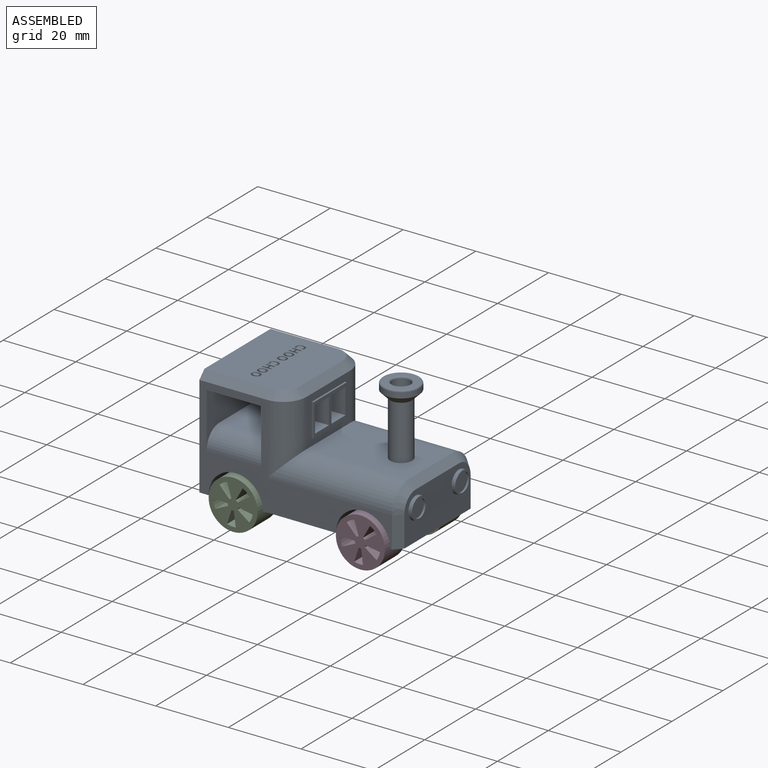
[diagram: assembled view]
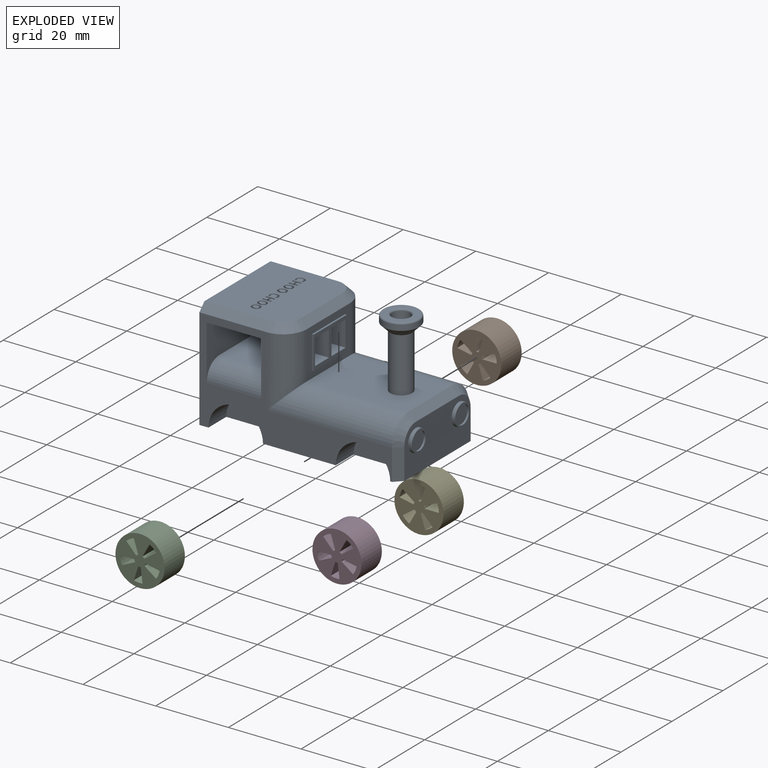
[diagram: exploded view]
GUIDED TOUR — MATED ASSEMBLY (Onshape document 162d488195452871875fd7fb, AutoMate assembly 162d488195452871875fd7fb_f5faa73a14c9afc2af14f6df_5c925709f93b5eba83035d90_default)

This assembly has 5 components, labeled P0..P4 below (a component is one placed occurrence of a part; the same part can appear more than once), held together by 4 mates. A mate is a constraint between two components; its type names the relative motion it leaves free:
  FASTENED — locks the two components together rigidly (no relative motion).
Axis/direction vectors are unit vectors and 'through' points are millimeter coordinates, both in the assembly's world frame.

MATES
  1. FASTENED "Fastened 1": P2 <-> P0, direction (0.000, 1.000, 0.000) through (-17.50, -8.00, 0.00) mm
  2. FASTENED "Fastened 3": P4 <-> P0, direction (0.000, 1.000, 0.000) through (17.50, 15.00, 0.00) mm
  3. FASTENED "Fastened 2": P3 <-> P0, direction (0.000, 1.000, 0.000) through (17.50, -8.00, 0.00) mm
  4. FASTENED "Fastened 4": P1 <-> P0, direction (0.000, -1.000, 0.000) through (-17.50, 8.00, 0.00) mm

ASSEMBLY ORDER
  1. P4 — the base component [order verified]
  2. P0 [order verified]
  3. P3 [order verified]
  4. P2 [order verified]
  5. P1 [order verified]
Order-tag legend:
  [order verified] — this step's position reverses a verified removal order: the component was checked to insert without passing through the ones already placed.

Of the 5 components, 4 carry the full construction recipe — the FeatureScript program that regenerates the part's solid from scratch; the rest are supplied as boundary geometry only.
Each toured component is shown spotlighted twice — in the assembled view, then in the exploded view, where a leader line traces a displaced component back to its assembled socket (saturated green if recipe-attached, orange if geometry-only; every other component desaturated gray) — followed by its recipe or geometry summary and the mates that hold it.
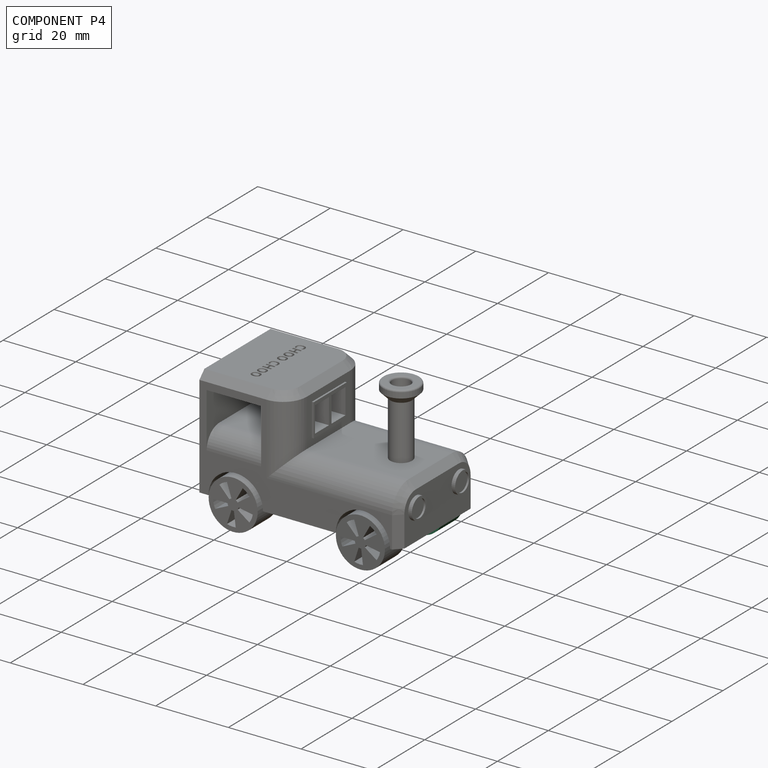
[diagram: component P4 — assembled]
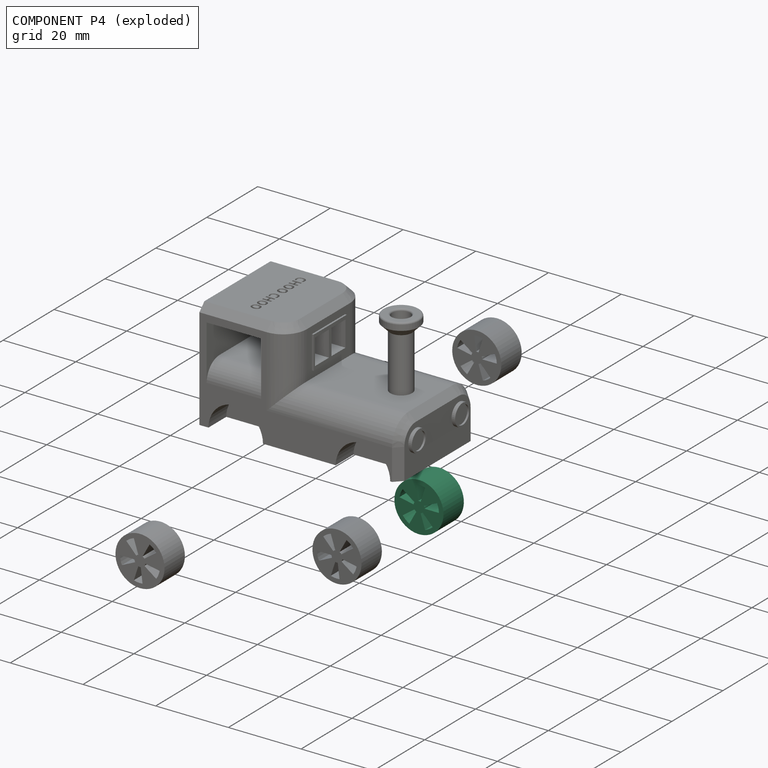
[diagram: component P4 — exploded]
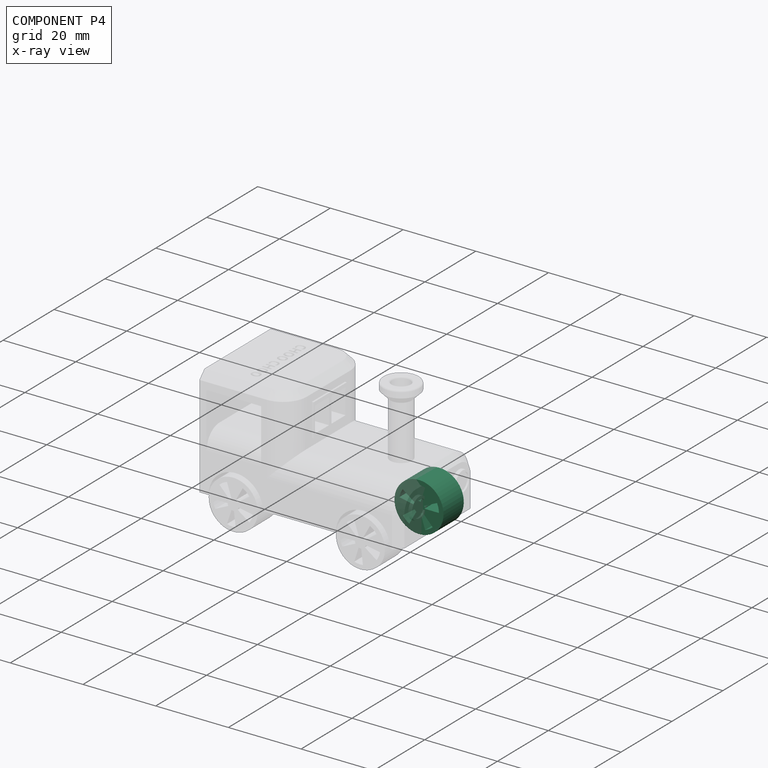
[diagram: component P4 — x-ray view]
COMPONENT P4 — same part as P1 (CADFS 00669288); its construction recipe is shown at P1.
Held by: FASTENED mate "Fastened 3" to P0.
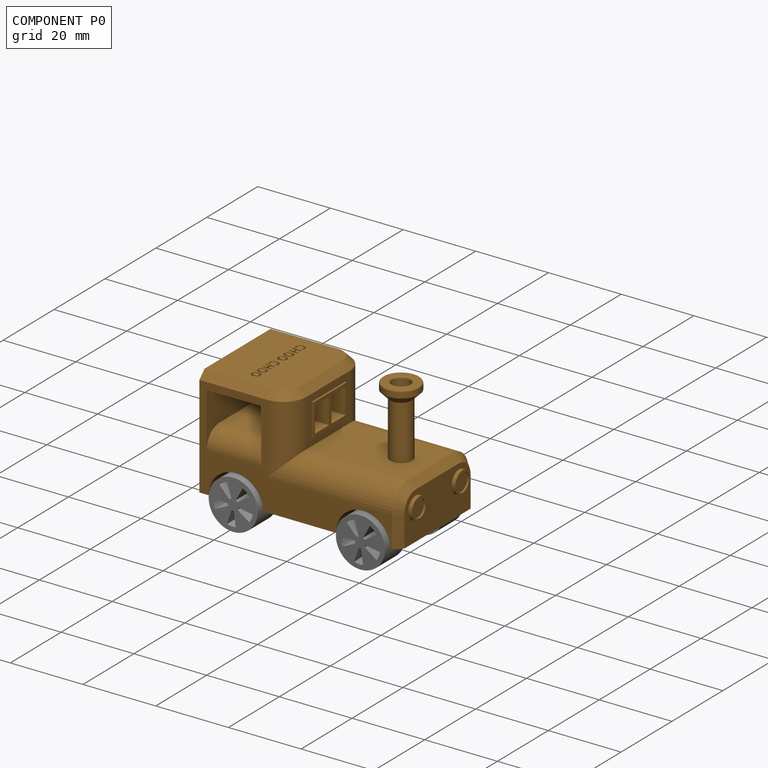
[diagram: component P0 — assembled]
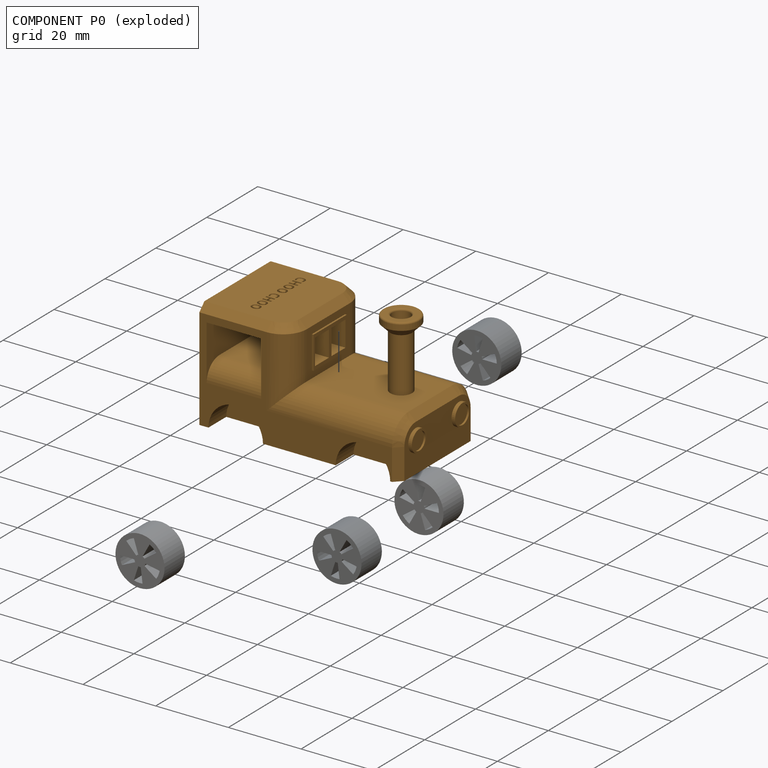
[diagram: component P0 — exploded]
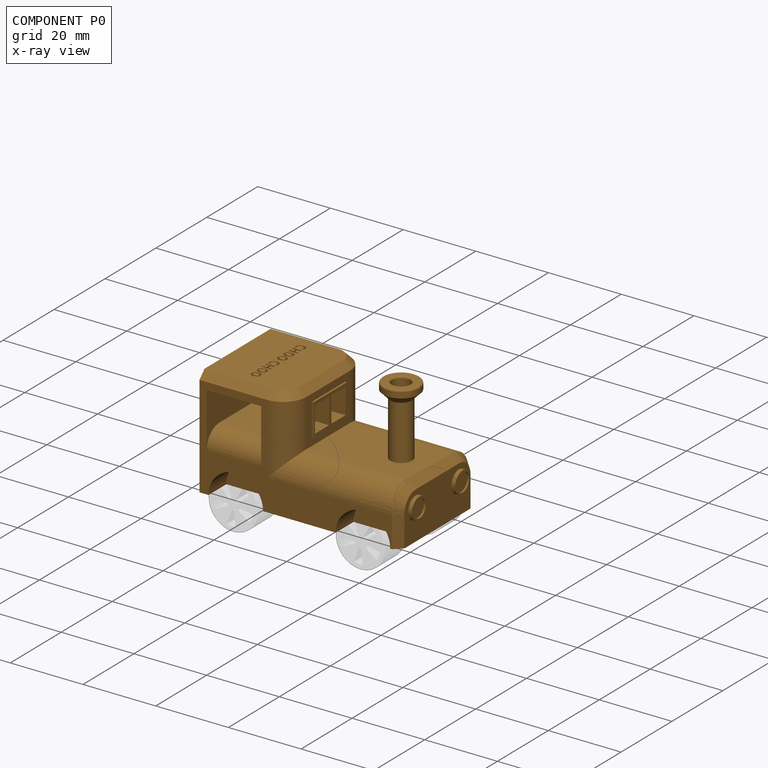
[diagram: component P0 — x-ray view]
COMPONENT P0 — geometry summary (no construction recipe available for this part):
  bounding box: 56.0 x 34.0 x 30.0 mm
  B-rep topology: 1 solid, 153 faces, 764 edges
  volume: 27770 mm^3 (49% of its bounding box)
Held by: FASTENED mate "Fastened 1" to P2; FASTENED mate "Fastened 3" to P4; FASTENED mate "Fastened 2" to P3; FASTENED mate "Fastened 4" to P1.
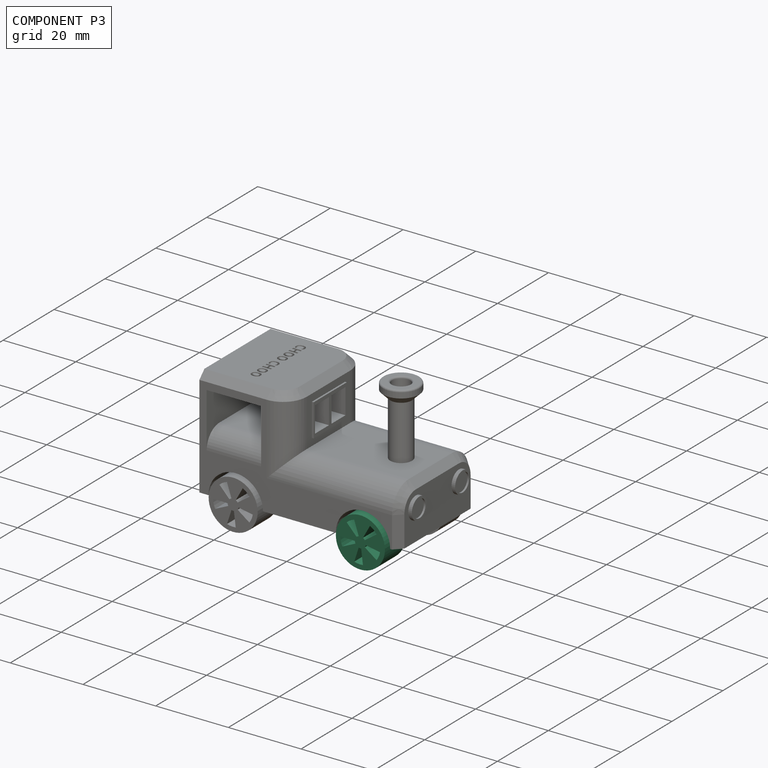
[diagram: component P3 — assembled]
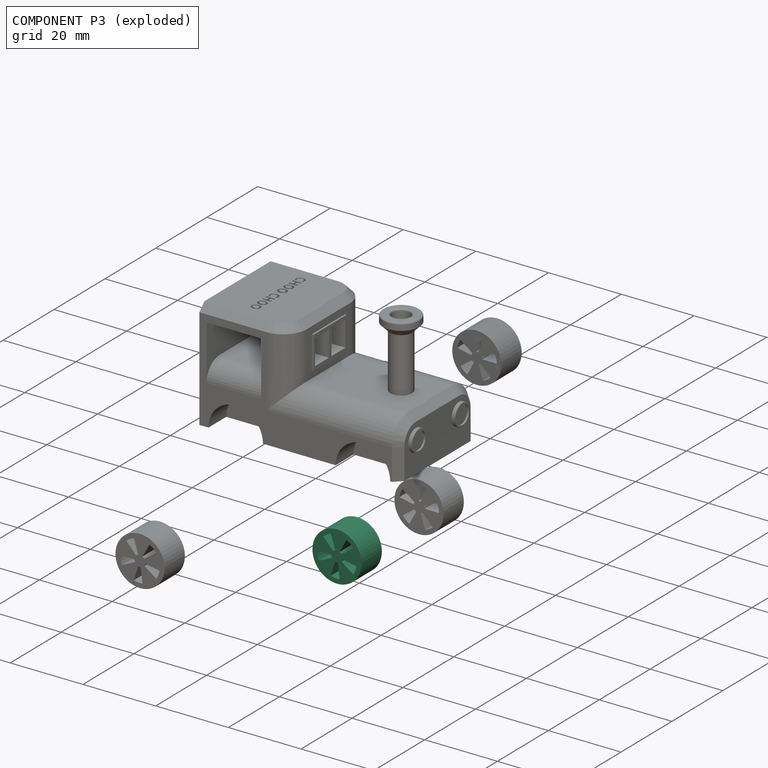
[diagram: component P3 — exploded]
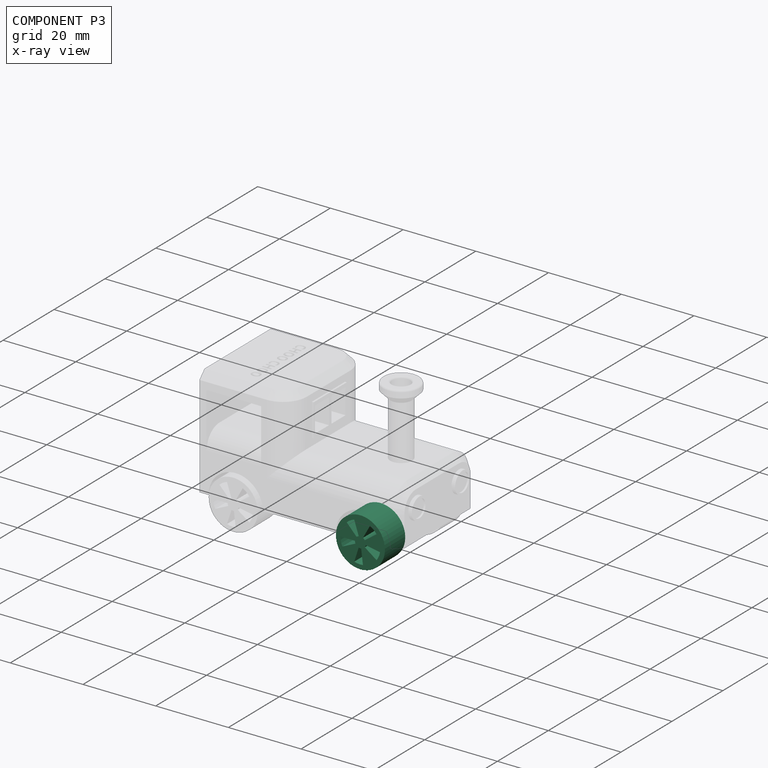
[diagram: component P3 — x-ray view]
COMPONENT P3 — same part as P1 (CADFS 00669288); its construction recipe is shown at P1.
Held by: FASTENED mate "Fastened 2" to P0.
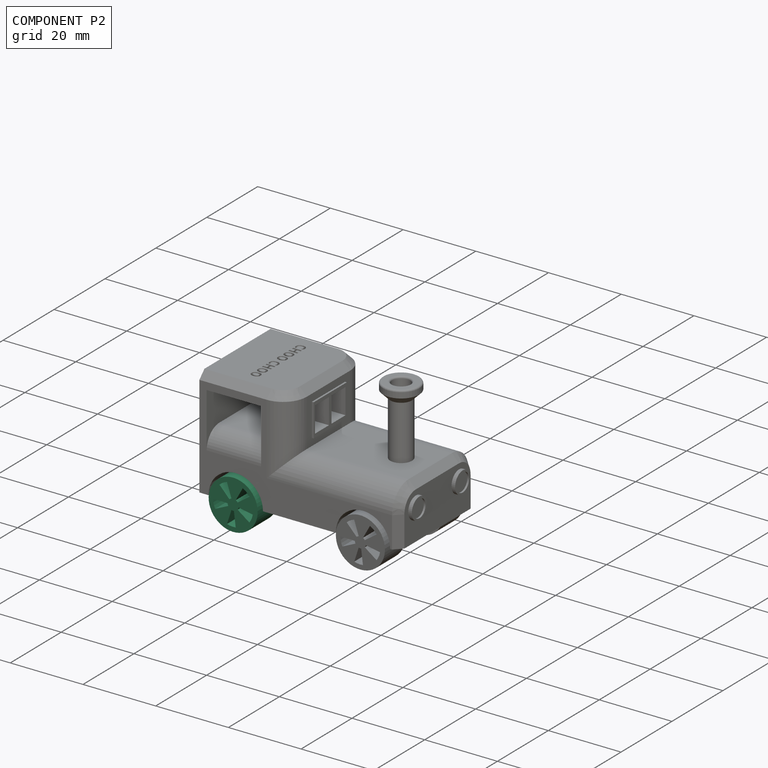
[diagram: component P2 — assembled]
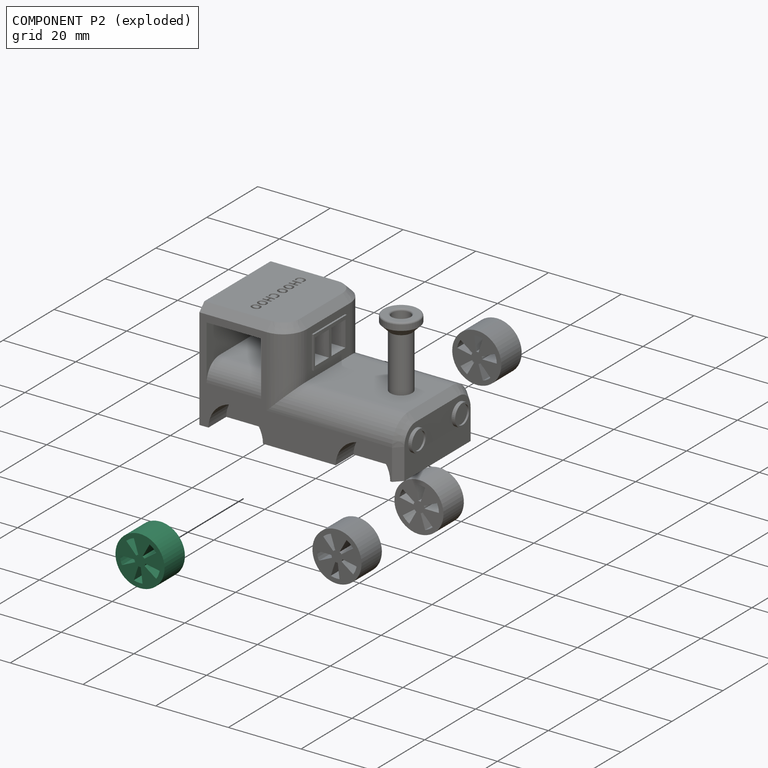
[diagram: component P2 — exploded]
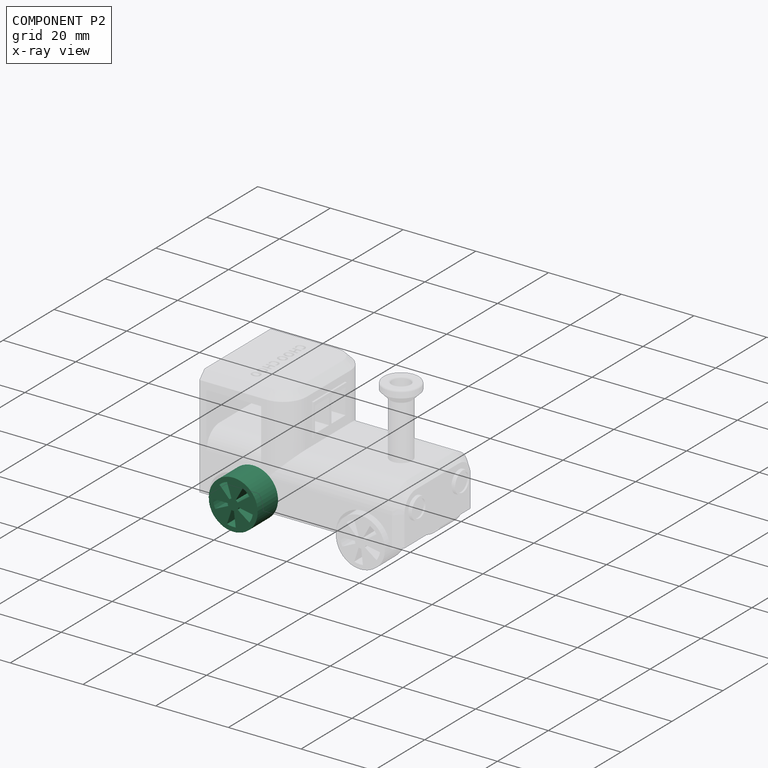
[diagram: component P2 — x-ray view]
COMPONENT P2 — same part as P1 (CADFS 00669288); its construction recipe is shown at P1.
Held by: FASTENED mate "Fastened 1" to P0.
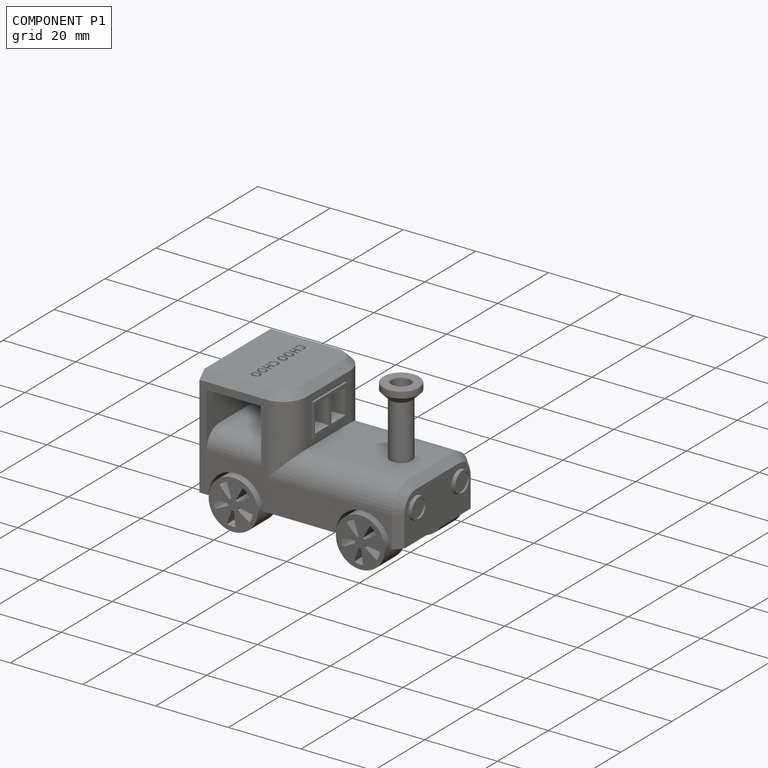
[diagram: component P1 — assembled]
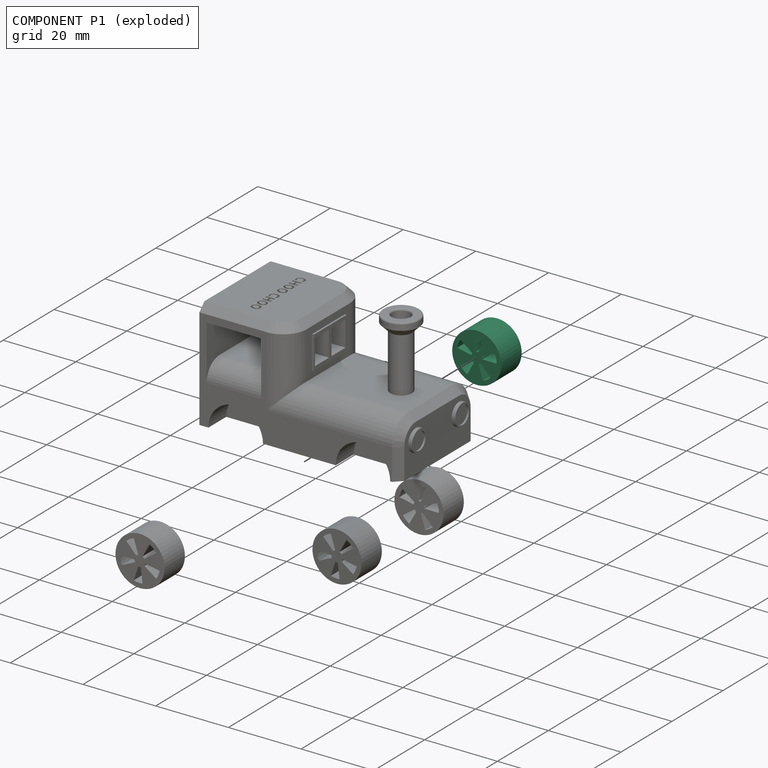
[diagram: component P1 — exploded]
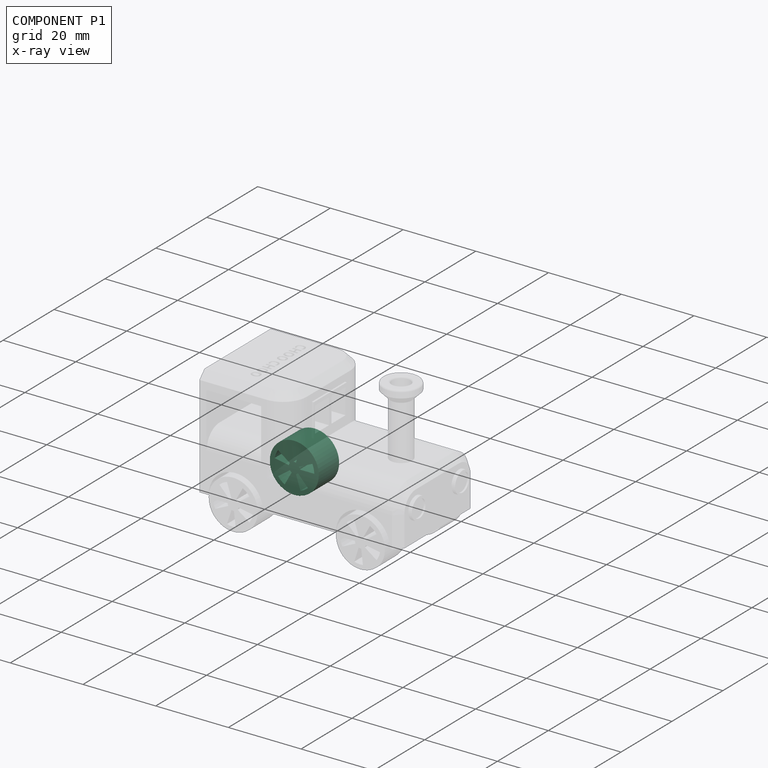
[diagram: component P1 — x-ray view]
COMPONENT P1 — recipe-attached (CADFS 00669288, mesh-verified: the recipe's output STEP matches this component's geometry to below the mesh-comparison resolution (tessellation chordal tolerance ~0.031 mm)).
Held by: FASTENED mate "Fastened 4" to P0.
Construction recipe (FeatureScript — the CAD program that rebuilds this solid; sketch coordinates are in the units given by the * unit suffixes, e.g. mm):

FeatureScript 1540;
import(path : "onshape/std/geometry.fs", version : "1540.0");
import(path : "onshape/std/common.fs", version : "1540.0");
const mm = millimeter;
const VERTEX = EntityType.VERTEX;
const EDGE = EntityType.EDGE;
const FACE = EntityType.FACE;
const BODY = EntityType.BODY;
function v(x, y){return vector(x, y);}
function OD(order){return orderDisambiguation(order);}
function OSD(set){return originalSetDisambiguation(set);}
function TD(topology){return topologyDisambiguation(topology);}
function TDD(query){return trueDependencyDisambiguation(query);}
function sQuery(a, b, c) {return sketchEntityQuery(a, b, c);}

annotation { "Feature Type Name" : "Feature", "Feature Type Description" : "" }
export const myFeature = defineFeature(function(context is Context, id is Id, definition is map)
    precondition{}
    {
        {
            var Q0;
            Q0=qCreatedBy(makeId("Right.planeOp"),FACE);
            var sketch = newSketch(context, id + "F0", { "sketchPlane" : qUnion([Q0])});
            skCircle(sketch, "E0", {"center": v(0, 0) * mm, "radius": 6.75 * mm});
            skSolve(sketch);
        }
        {
            var Q0;
            Q0=makeQuery(id+"F0.imprint","IMPRINT",FACE,{"disambiguationData":[TD([[makeQuery(id+"F0.imprint","IMPRINT",EDGE,{"derivedFrom":sQuery(id+"F0.wireOp",EDGE,"E0")}),1.0]])]});
            extrude(context, id + "F1", {"entities" : qUnion([Q0]), "depth" : 8 * mm, "offsetDistance" : 25 * mm});
        }
        {
            var Q0;
            Q0=makeQuery(id+"F1.opExtrude","CAP_FACE",FACE,{"disambiguationData":[OSD([sQuery(id+"F0.wireOp",EDGE,"E0")])],"isStart":false});
            var sketch = newSketch(context, id + "F2", { "sketchPlane" : qUnion([Q0])});
            skCircle(sketch, "E1", {"center": v(0, 0) * mm, "radius": 5.5 * mm});
            skCircle(sketch, "E2", {"center": v(0, 0) * mm, "radius": 1.5 * mm});
            skLineSegment(sketch, "E3", {"start": v(0, 1.5) * mm, "end": v(0, 5.5) * mm});
            skLineSegment(sketch, "E4", {"start": v(0.66, 1.35) * mm, "end": v(2.35, 4.97) * mm});
            skLineSegment(sketch, "E5.1.0", {"start": v(-1.43, 0.46) * mm, "end": v(-5.23, 1.7) * mm});
            skLineSegment(sketch, "E5.1.1", {"start": v(-1.08, 1.04) * mm, "end": v(-4, 3.77) * mm});
            skLineSegment(sketch, "E5.2.0", {"start": v(-0.88, -1.21) * mm, "end": v(-3.23, -4.45) * mm});
            skLineSegment(sketch, "E5.2.1", {"start": v(-1.32, -0.7) * mm, "end": v(-4.82, -2.64) * mm});
            skLineSegment(sketch, "E5.3.0", {"start": v(0.88, -1.21) * mm, "end": v(3.23, -4.45) * mm});
            skLineSegment(sketch, "E5.3.1", {"start": v(0.26, -1.48) * mm, "end": v(1.02, -5.4) * mm});
            skLineSegment(sketch, "E5.4.0", {"start": v(1.43, 0.46) * mm, "end": v(5.23, 1.7) * mm});
            skLineSegment(sketch, "E5.4.1", {"start": v(1.49, -0.2) * mm, "end": v(5.46, -0.7) * mm});
            skSolve(sketch);
        }
        {
            var Q0;
            {var subQ0=sQuery(id+"F2.wireOp",EDGE,"E5.1.0");Q0=makeQuery(id+"F2.imprint","IMPRINT",FACE,{"disambiguationData":[TD([[makeQuery(id+"F2.imprint","IMPRINT",EDGE,{"derivedFrom":subQ0}),-1.0]])]});}
            var Q1;
            {var subQ0=sQuery(id+"F2.wireOp",EDGE,"E3");Q1=makeQuery(id+"F2.imprint","IMPRINT",FACE,{"disambiguationData":[TD([[makeQuery(id+"F2.imprint","IMPRINT",EDGE,{"derivedFrom":subQ0}),-1.0]])]});}
            var Q2;
            {var subQ0=sQuery(id+"F2.wireOp",EDGE,"E5.4.0");Q2=makeQuery(id+"F2.imprint","IMPRINT",FACE,{"disambiguationData":[TD([[makeQuery(id+"F2.imprint","IMPRINT",EDGE,{"derivedFrom":subQ0}),-1.0]])]});}
            var Q3;
            {var subQ0=sQuery(id+"F2.wireOp",EDGE,"E5.3.0");Q3=makeQuery(id+"F2.imprint","IMPRINT",FACE,{"disambiguationData":[TD([[makeQuery(id+"F2.imprint","IMPRINT",EDGE,{"derivedFrom":subQ0}),-1.0]])]});}
            var Q4;
            {var subQ0=sQuery(id+"F2.wireOp",EDGE,"E5.2.0");Q4=makeQuery(id+"F2.imprint","IMPRINT",FACE,{"disambiguationData":[TD([[makeQuery(id+"F2.imprint","IMPRINT",EDGE,{"derivedFrom":subQ0}),-1.0]])]});}
            extrude(context, id + "F3", {"entities" : qUnion([Q0, Q1, Q2, Q3, Q4]), "operationType" : NewBodyOperationType.REMOVE, "endBound" : BoundingType.THROUGH_ALL, "oppositeDirection" : true, "depth" : 25 * mm, "offsetDistance" : 25 * mm});
        }
    });
PROVENANCE & LICENSES
Assembly (occurrences, transforms, mates, per-part STEP geometry): AutoMate dataset, Zenodo record 7776208, CC0.
Construction recipes: CADFS (HuggingFace VladPyatov/CADFS, CC-BY-4.0, layered over the ABC dataset), FeatureScript reconstruction programs keyed by ABC model id.
Join: ABC meta listings map ABC model id -> Onshape documentId; within a shared document, parts are matched by geometric signature (bounding-box dims + volume at 0.1% relative tolerance, exact B-rep face/solid counts).
Verification: 4 of this assembly's 5 components carry a recipe attachment, and every attachment is mesh-verified: the CADFS STEP and the AutoMate member STEP were compared as meshes in their shared local frame (symmetric sampled-point-to-mesh distance); worst across the 4 attachments: below the mesh-comparison resolution (tessellation chordal tolerance ~0.031 mm) on a 21 mm part.
Renders: orthographic iso camera (az 35 / el 25); the floor grid conveys scale (grid pitch printed in each image; no ruler). In the exploded view each component is displaced by its stored offset vector: the offsets alone carry the explosion direction (mate normal/axis signs are not orientation cues and do not encode it), and separation distances are assigned per mate-chain, not proportionally to assembly-order depth.
